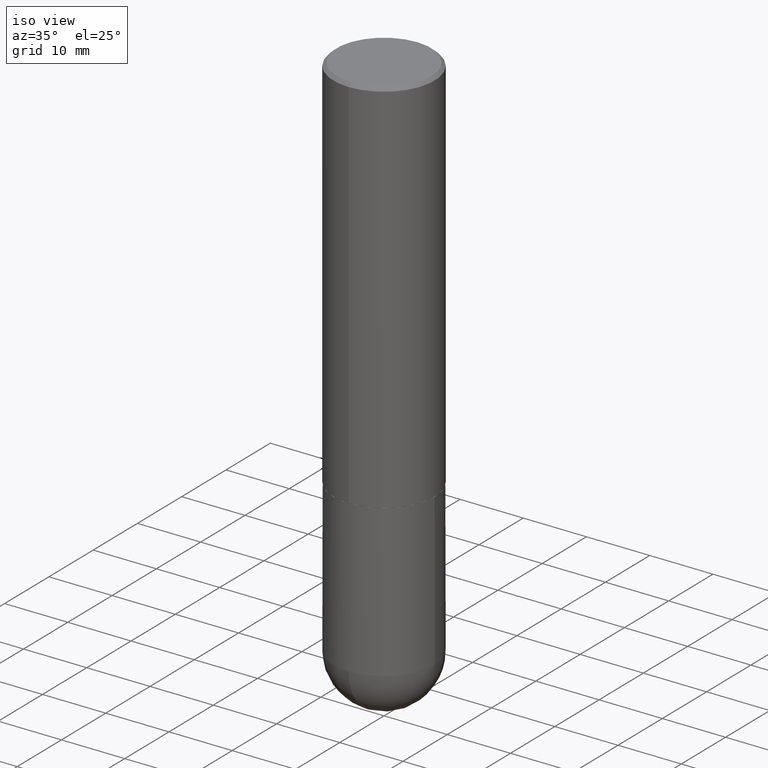
[diagram: clean part render]
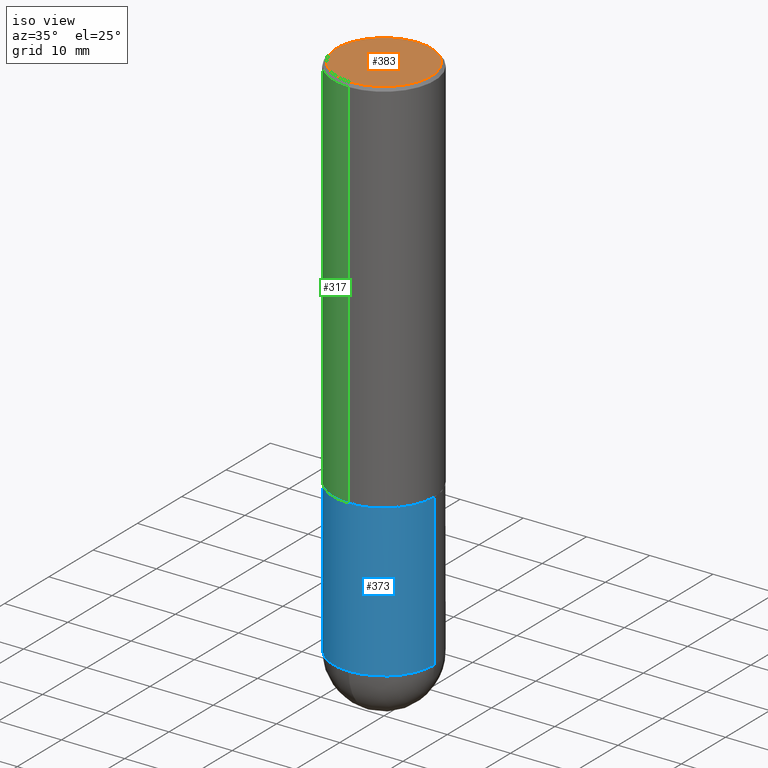
[diagram: same view with three faces highlighted in distinct colors, each labeled with its STEP entity id]
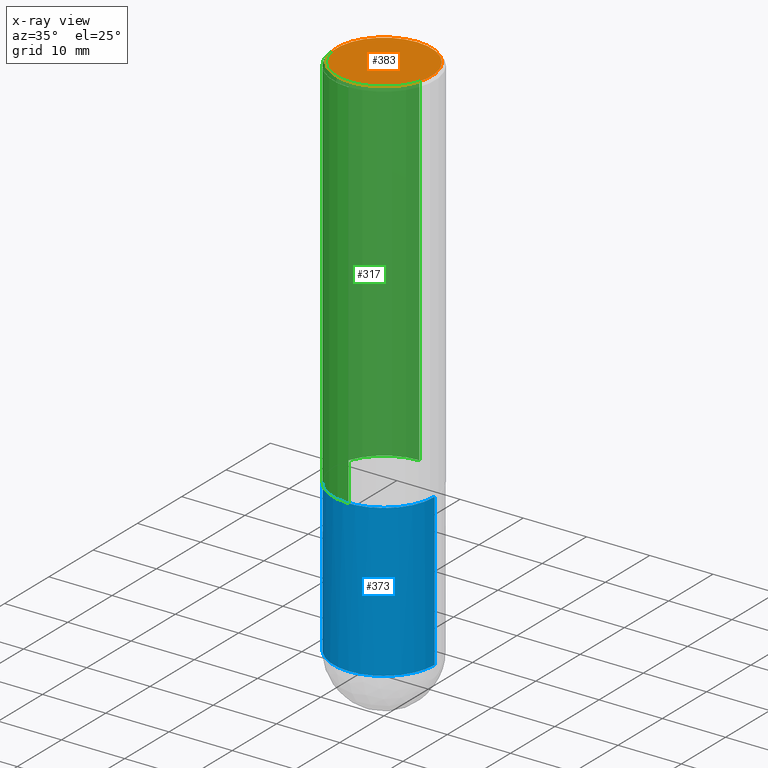
[diagram: x-ray of the same camera — body ghosted, the three highlighted faces saturated]
A machine part, iso view with three faces highlighted in distinct colors.
The next image is the same camera in x-ray (body ghosted, the three faces saturated) — at least one of them is partly hidden behind the body in this view.
Their STEP definitions:

[orange] entity #383 — the highlighted planar face has unit normal (0, -0, -1).
#11 = CIRCLE ( 'NONE', #155, 0.2949499999999997679 ) ;
#12 = EDGE_CURVE ( 'NONE', #233, #263, #284, .T. ) ;
#17 = DIRECTION ( 'NONE',  ( -2.444863750846570139E-29, 3.492347812525583981E-15, 1.000000000000000000 ) ) ;
#29 = PLANE ( 'NONE',  #113 ) ;
#36 = FACE_OUTER_BOUND ( 'NONE', #405, .T. ) ;
#41 = ORIENTED_EDGE ( 'NONE', *, *, #273, .T. ) ;
#66 = DIRECTION ( 'NONE',  ( -2.444863750846570139E-29, 3.492347812525583981E-15, 1.000000000000000000 ) ) ;
#90 = DIRECTION ( 'NONE',  ( -6.982962677686265922E-15, -1.000000000000000000, 3.492347812525583981E-15 ) ) ;
#99 = DIRECTION ( 'NONE',  ( 6.982962677686265922E-15, 1.000000000000000000, -3.492347812525583981E-15 ) ) ;
#111 = AXIS2_PLACEMENT_3D ( 'NONE', #299, #17, #90 ) ;
#113 = AXIS2_PLACEMENT_3D ( 'NONE', #151, #281, #99 ) ;
#151 = CARTESIAN_POINT ( 'NONE',  ( 2.059624841783562486E-15, 0.2949499999999997679, -9.125561106203411769E-16 ) ) ;
#155 = AXIS2_PLACEMENT_3D ( 'NONE', #175, #66, #219 ) ;
#175 = CARTESIAN_POINT ( 'NONE',  ( -5.746010551977135930E-45, 8.207846909668386328E-31, 2.350237533681578796E-16 ) ) ;
#193 = CARTESIAN_POINT ( 'NONE',  ( 2.129454468560426178E-15, 0.2949499999999997679, -7.950442339362623110E-16 ) ) ;
#219 = DIRECTION ( 'NONE',  ( -6.982962677686265922E-15, -1.000000000000000000, 3.492347812525583981E-15 ) ) ;
#227 = CARTESIAN_POINT ( 'NONE',  ( -2.092108864420427242E-15, -0.2949499999999997679, 1.265091740672577972E-15 ) ) ;
#233 = VERTEX_POINT ( 'NONE', #227 ) ;
#263 = VERTEX_POINT ( 'NONE', #193 ) ;
#273 = EDGE_CURVE ( 'NONE', #263, #233, #11, .T. ) ;
#281 = DIRECTION ( 'NONE',  ( 2.444863750846569859E-29, -3.492347812525583981E-15, -1.000000000000000000 ) ) ;
#284 = CIRCLE ( 'NONE', #111, 0.2949499999999997679 ) ;
#299 = CARTESIAN_POINT ( 'NONE',  ( -5.746010551977135930E-45, 8.207846909668386328E-31, 2.350237533681578796E-16 ) ) ;
#355 = ORIENTED_EDGE ( 'NONE', *, *, #12, .T. ) ;
#383 = ADVANCED_FACE ( 'NONE', ( #36 ), #29, .F. ) ;
#405 = EDGE_LOOP ( 'NONE', ( #41, #355 ) ) ;

[blue] entity #373 — the highlighted cylindrical surface (partial cylindrical patch) has radius 7.9997 mm, axis along (-0, 0, 1).
#3 = CARTESIAN_POINT ( 'NONE',  ( 8.087287615494557476E-29, -1.154650336162122627E-14, -3.307050000000000267 ) ) ;
#4 = CARTESIAN_POINT ( 'NONE',  ( 8.087287615494557476E-29, -1.154650336162122627E-14, -3.307050000000000267 ) ) ;
#5 = VERTEX_POINT ( 'NONE', #86 ) ;
#10 = AXIS2_PLACEMENT_3D ( 'NONE', #3, #65, #25 ) ;
#25 = DIRECTION ( 'NONE',  ( 1.000000000000000000, -6.982962677686269866E-15, 0.000000000000000000 ) ) ;
#30 = ORIENTED_EDGE ( 'NONE', *, *, #386, .F. ) ;
#32 = CARTESIAN_POINT ( 'NONE',  ( 0.000000000000000000, 0.000000000000000000, 0.000000000000000000 ) ) ;
#37 = VECTOR ( 'NONE', #222, 39.37007874015748143 ) ;
#40 = EDGE_LOOP ( 'NONE', ( #30, #212, #319, #197, #354 ) ) ;
#43 = VERTEX_POINT ( 'NONE', #173 ) ;
#51 = CIRCLE ( 'NONE', #275, 0.3149500000000000077 ) ;
#65 = DIRECTION ( 'NONE',  ( -2.445468806185136597E-29, 3.491481338843145583E-15, 1.000000000000000000 ) ) ;
#73 = VERTEX_POINT ( 'NONE', #286 ) ;
#82 = CIRCLE ( 'NONE', #291, 0.3149500000000000077 ) ;
#86 = CARTESIAN_POINT ( 'NONE',  ( -2.237854346276355915E-15, -0.3149500000000118871, -3.307049999999999379 ) ) ;
#88 = EDGE_CURVE ( 'NONE', #161, #5, #132, .T. ) ;
#104 = VERTEX_POINT ( 'NONE', #315 ) ;
#119 = CARTESIAN_POINT ( 'NONE',  ( -0.3149500000000000077, 2.237854346276435590E-15, -1.549218606675782676E-29 ) ) ;
#128 = DIRECTION ( 'NONE',  ( -2.445468806185136597E-29, 3.491481338843145583E-15, 1.000000000000000000 ) ) ;
#132 = CIRCLE ( 'NONE', #10, 0.3149500000000000077 ) ;
#158 = CARTESIAN_POINT ( 'NONE',  ( 5.776686413970529753E-29, -8.247577218615278049E-15, -2.362199999999999633 ) ) ;
#161 = VERTEX_POINT ( 'NONE', #384 ) ;
#173 = CARTESIAN_POINT ( 'NONE',  ( 0.3149500000000000077, -1.044686131395256792E-14, -2.362199999999999633 ) ) ;
#197 = ORIENTED_EDGE ( 'NONE', *, *, #393, .T. ) ;
#212 = ORIENTED_EDGE ( 'NONE', *, *, #88, .T. ) ;
#222 = DIRECTION ( 'NONE',  ( -2.445468806185136877E-29, 3.491481338843145188E-15, 1.000000000000000000 ) ) ;
#252 = DIRECTION ( 'NONE',  ( 1.000000000000000000, -6.982962677686266711E-15, 0.000000000000000000 ) ) ;
#254 = DIRECTION ( 'NONE',  ( -2.445468806185136877E-29, 3.491481338843145188E-15, 1.000000000000000000 ) ) ;
#267 = VECTOR ( 'NONE', #254, 39.37007874015748143 ) ;
#275 = AXIS2_PLACEMENT_3D ( 'NONE', #4, #388, #277 ) ;
#277 = DIRECTION ( 'NONE',  ( 1.000000000000000000, -6.982962677686269866E-15, 0.000000000000000000 ) ) ;
#286 = CARTESIAN_POINT ( 'NONE',  ( 0.3149500000000000077, -1.209632438545554361E-14, -3.307050000000000267 ) ) ;
#287 = LINE ( 'NONE', #346, #267 ) ;
#291 = AXIS2_PLACEMENT_3D ( 'NONE', #158, #380, #252 ) ;
#313 = CYLINDRICAL_SURFACE ( 'NONE', #402, 0.3149500000000000077 ) ;
#315 = CARTESIAN_POINT ( 'NONE',  ( -0.3149500000000000077, -7.659185943841816172E-15, -2.362199999999999633 ) ) ;
#316 = DIRECTION ( 'NONE',  ( 1.000000000000000000, -6.982962677686266711E-15, 4.876176775795936353E-29 ) ) ;
#319 = ORIENTED_EDGE ( 'NONE', *, *, #400, .T. ) ;
#322 = EDGE_CURVE ( 'NONE', #104, #43, #82, .T. ) ;
#346 = CARTESIAN_POINT ( 'NONE',  ( 0.3149500000000000077, -2.199284095337289871E-15, 1.535751875536930130E-29 ) ) ;
#354 = ORIENTED_EDGE ( 'NONE', *, *, #322, .F. ) ;
#373 = ADVANCED_FACE ( 'NONE', ( #376 ), #313, .T. ) ;
#376 = FACE_OUTER_BOUND ( 'NONE', #40, .T. ) ;
#380 = DIRECTION ( 'NONE',  ( -2.445468806185136597E-29, 3.491481338843145583E-15, 1.000000000000000000 ) ) ;
#384 = CARTESIAN_POINT ( 'NONE',  ( -0.3149500000000000077, -7.659185943841817750E-15, -3.307050000000000267 ) ) ;
#386 = EDGE_CURVE ( 'NONE', #161, #104, #409, .T. ) ;
#388 = DIRECTION ( 'NONE',  ( -2.445468806185136597E-29, 3.491481338843145583E-15, 1.000000000000000000 ) ) ;
#393 = EDGE_CURVE ( 'NONE', #73, #43, #287, .T. ) ;
#400 = EDGE_CURVE ( 'NONE', #5, #73, #51, .T. ) ;
#402 = AXIS2_PLACEMENT_3D ( 'NONE', #32, #128, #316 ) ;
#409 = LINE ( 'NONE', #119, #37 ) ;

[green] entity #317 — the highlighted cylindrical surface (partial cylindrical patch) has radius 7.9997 mm, axis along (-0, 0, 1).
#1 = CARTESIAN_POINT ( 'NONE',  ( 2.237854346276465567E-15, 0.3149499999999920141, -2.361200000000000632 ) ) ;
#6 = CARTESIAN_POINT ( 'NONE',  ( -2.160713844398143363E-15, -0.3149500000000000632, -0.01999999999999896999 ) ) ;
#58 = EDGE_CURVE ( 'NONE', #189, #314, #266, .T. ) ;
#62 = FACE_OUTER_BOUND ( 'NONE', #92, .T. ) ;
#78 = ORIENTED_EDGE ( 'NONE', *, *, #154, .F. ) ;
#87 = AXIS2_PLACEMENT_3D ( 'NONE', #187, #179, #210 ) ;
#92 = EDGE_LOOP ( 'NONE', ( #289, #377, #361, #78 ) ) ;
#93 = CARTESIAN_POINT ( 'NONE',  ( 2.237854346276435985E-15, 0.3149500000000001743, -1.099914943554933292E-15 ) ) ;
#107 = AXIS2_PLACEMENT_3D ( 'NONE', #123, #249, #126 ) ;
#115 = EDGE_CURVE ( 'NONE', #189, #143, #129, .T. ) ;
#120 = VERTEX_POINT ( 'NONE', #6 ) ;
#123 = CARTESIAN_POINT ( 'NONE',  ( 0.000000000000000000, 0.000000000000000000, 0.000000000000000000 ) ) ;
#126 = DIRECTION ( 'NONE',  ( -6.982962677686264344E-15, -1.000000000000000000, 3.492347812525583981E-15 ) ) ;
#129 = LINE ( 'NONE', #93, #194 ) ;
#143 = VERTEX_POINT ( 'NONE', #345 ) ;
#147 = DIRECTION ( 'NONE',  ( -2.444863750846570419E-29, 3.492347812525583981E-15, 1.000000000000000000 ) ) ;
#153 = CARTESIAN_POINT ( 'NONE',  ( -2.199284095337290265E-15, -0.3149500000000001743, 1.099914943554933292E-15 ) ) ;
#154 = EDGE_CURVE ( 'NONE', #143, #120, #250, .T. ) ;
#179 = DIRECTION ( 'NONE',  ( -2.444863750846570139E-29, 3.492347812525583981E-15, 1.000000000000000000 ) ) ;
#185 = CYLINDRICAL_SURFACE ( 'NONE', #107, 0.3149500000000001743 ) ;
#187 = CARTESIAN_POINT ( 'NONE',  ( 5.772812288498920287E-29, -8.246131654935407523E-15, -2.361199999999999743 ) ) ;
#189 = VERTEX_POINT ( 'NONE', #1 ) ;
#194 = VECTOR ( 'NONE', #318, 39.37007874015748143 ) ;
#210 = DIRECTION ( 'NONE',  ( -6.982962677686265922E-15, -1.000000000000000000, 3.469564049740290009E-15 ) ) ;
#223 = DIRECTION ( 'NONE',  ( -6.982962677686265922E-15, -1.000000000000000000, 3.496670018878889100E-15 ) ) ;
#245 = LINE ( 'NONE', #153, #351 ) ;
#249 = DIRECTION ( 'NONE',  ( -2.444863750846570139E-29, 3.492347812525583981E-15, 1.000000000000000000 ) ) ;
#250 = CIRCLE ( 'NONE', #391, 0.3149500000000000077 ) ;
#266 = CIRCLE ( 'NONE', #87, 0.3149500000000002853 ) ;
#276 = CARTESIAN_POINT ( 'NONE',  ( 4.889727501693158145E-31, -6.984695625051194290E-17, -0.02000000000000007327 ) ) ;
#282 = DIRECTION ( 'NONE',  ( -2.444863750846570139E-29, 3.492347812525583981E-15, 1.000000000000000000 ) ) ;
#289 = ORIENTED_EDGE ( 'NONE', *, *, #115, .F. ) ;
#314 = VERTEX_POINT ( 'NONE', #343 ) ;
#317 = ADVANCED_FACE ( 'NONE', ( #62 ), #185, .T. ) ;
#318 = DIRECTION ( 'NONE',  ( -2.444863750846570419E-29, 3.492347812525583981E-15, 1.000000000000000000 ) ) ;
#343 = CARTESIAN_POINT ( 'NONE',  ( -2.199284095337233467E-15, -0.3149500000000085564, -2.361199999999998411 ) ) ;
#345 = CARTESIAN_POINT ( 'NONE',  ( 2.199284095337289871E-15, 0.3149499999999999522, -0.02000000000000117309 ) ) ;
#351 = VECTOR ( 'NONE', #147, 39.37007874015748143 ) ;
#361 = ORIENTED_EDGE ( 'NONE', *, *, #374, .T. ) ;
#374 = EDGE_CURVE ( 'NONE', #314, #120, #245, .T. ) ;
#377 = ORIENTED_EDGE ( 'NONE', *, *, #58, .T. ) ;
#391 = AXIS2_PLACEMENT_3D ( 'NONE', #276, #282, #223 ) ;